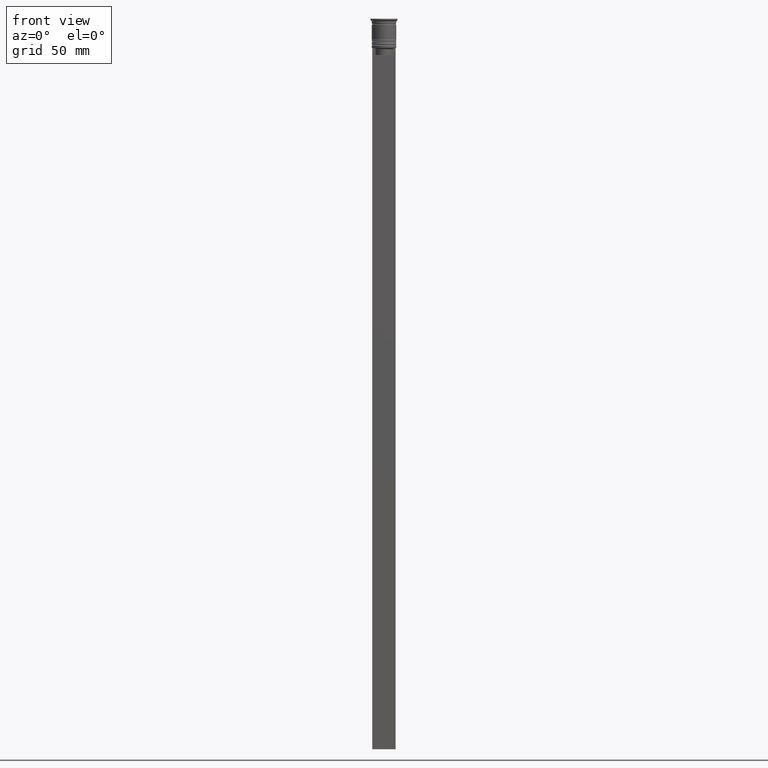
[diagram: clean part render]
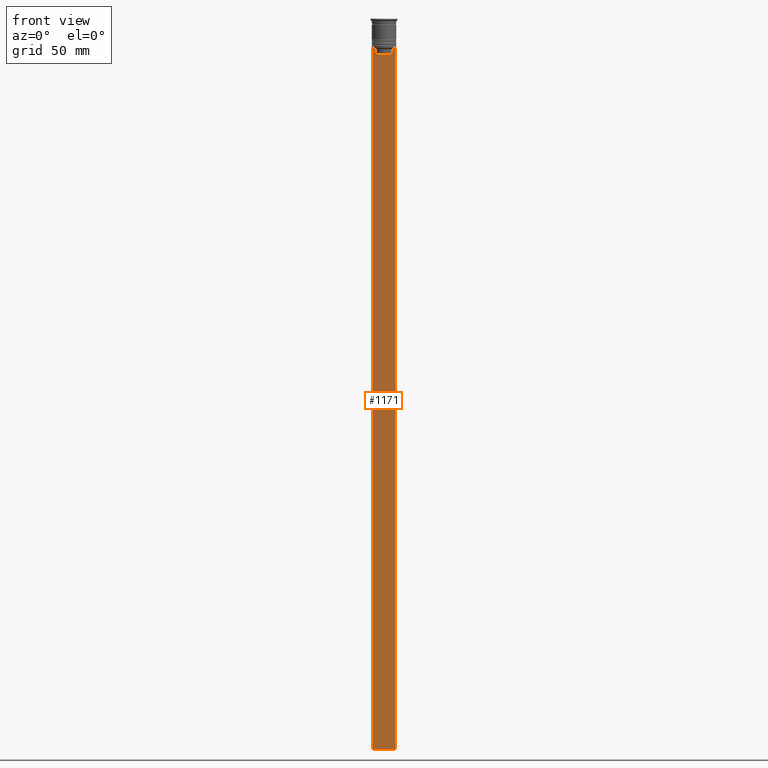
[diagram: same view with one face highlighted and labeled with its STEP entity id]
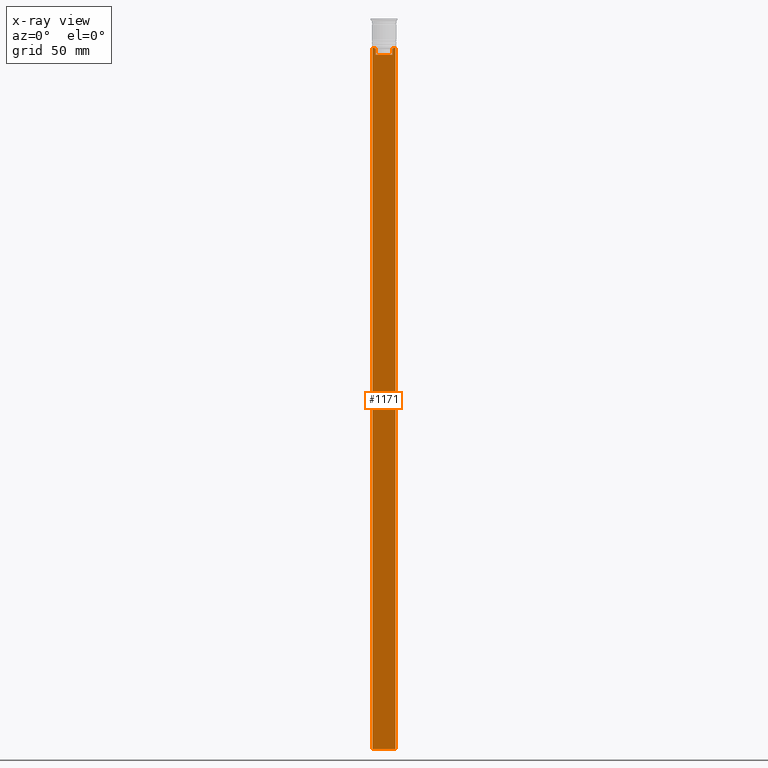
[diagram: x-ray of the same camera — body ghosted, the highlighted face saturated]
A machine part, front view. The second image highlights one B-rep face of the part: STEP entity #1171.
The next image is the same camera in x-ray: the body ghosted, the highlighted face saturated — about 0% of this face is hidden behind the body in this view.
In plain terms, the highlighted planar face has unit normal (0, -1, -0).
Its self-contained STEP definition (entity closure, byte-faithful):
#2 = DIRECTION ( 'NONE',  ( -0.000000000000000000, -0.000000000000000000, 1.000000000000000000 ) ) ;
#152 = ORIENTED_EDGE ( 'NONE', *, *, #1941, .T. ) ;
#163 = CARTESIAN_POINT ( 'NONE',  ( 5.000000000000000000, -0.5000000000000008882, -12.50000000000000000 ) ) ;
#224 = VERTEX_POINT ( 'NONE', #1565 ) ;
#252 = EDGE_CURVE ( 'NONE', #2272, #1812, #2066, .T. ) ;
#289 = ORIENTED_EDGE ( 'NONE', *, *, #1993, .F. ) ;
#302 = EDGE_CURVE ( 'NONE', #1812, #2226, #917, .T. ) ;
#318 = VECTOR ( 'NONE', #1715, 1000.000000000000000 ) ;
#334 = DIRECTION ( 'NONE',  ( 0.000000000000000000, 0.000000000000000000, -1.000000000000000000 ) ) ;
#386 = CARTESIAN_POINT ( 'NONE',  ( -4.119769411022908834, -0.5000000000000008882, -12.50000000000000000 ) ) ;
#412 = CARTESIAN_POINT ( 'NONE',  ( 5.000000000000000000, -0.5000000000000008882, -12.50000000000000000 ) ) ;
#415 = CARTESIAN_POINT ( 'NONE',  ( -3.951794205566887985, -0.5000000000000008882, -12.66675159355373914 ) ) ;
#474 = AXIS2_PLACEMENT_3D ( 'NONE', #2008, #907, #1818 ) ;
#526 = CARTESIAN_POINT ( 'NONE',  ( -3.615591237958188486, -0.5000000000000008882, -15.50000000000000000 ) ) ;
#529 = CARTESIAN_POINT ( 'NONE',  ( 3.951794168112528816, -0.5000000000000008882, -12.66675163073525745 ) ) ;
#534 = LINE ( 'NONE', #1815, #1154 ) ;
#556 = FACE_OUTER_BOUND ( 'NONE', #603, .T. ) ;
#603 = EDGE_LOOP ( 'NONE', ( #946, #2078, #152, #289, #1701, #2203, #698, #1887, #2242, #657 ) ) ;
#608 = EDGE_CURVE ( 'NONE', #701, #1915, #1756, .T. ) ;
#657 = ORIENTED_EDGE ( 'NONE', *, *, #608, .F. ) ;
#659 = DIRECTION ( 'NONE',  ( 0.000000000000000000, 0.000000000000000000, -1.000000000000000000 ) ) ;
#698 = ORIENTED_EDGE ( 'NONE', *, *, #1640, .F. ) ;
#701 = VERTEX_POINT ( 'NONE', #1402 ) ;
#703 = CARTESIAN_POINT ( 'NONE',  ( 3.615591237958188042, -0.5000000000000008882, -13.00000000000000178 ) ) ;
#737 = DIRECTION ( 'NONE',  ( 0.000000000000000000, 0.000000000000000000, -1.000000000000000000 ) ) ;
#750 = VECTOR ( 'NONE', #2326, 1000.000000000000000 ) ;
#798 = CARTESIAN_POINT ( 'NONE',  ( 5.000000000000000000, -0.5000000000000008882, -312.5000000000000000 ) ) ;
#830 = VECTOR ( 'NONE', #334, 1000.000000000000000 ) ;
#858 = CARTESIAN_POINT ( 'NONE',  ( 5.000000000000000000, -0.5000000000000008882, -312.5000000000000000 ) ) ;
#874 = CARTESIAN_POINT ( 'NONE',  ( -4.999999999999999112, -0.5000000000000008882, -2.450124378879110054 ) ) ;
#891 = LINE ( 'NONE', #858, #750 ) ;
#902 = VECTOR ( 'NONE', #1585, 1000.000000000000000 ) ;
#907 = DIRECTION ( 'NONE',  ( 0.000000000000000000, -1.000000000000000000, -0.000000000000000000 ) ) ;
#917 = LINE ( 'NONE', #1450, #2168 ) ;
#946 = ORIENTED_EDGE ( 'NONE', *, *, #1021, .F. ) ;
#966 = CARTESIAN_POINT ( 'NONE',  ( -3.615591237958188042, -0.5000000000000008882, -13.00000000000000178 ) ) ;
#1021 = EDGE_CURVE ( 'NONE', #2049, #701, #1581, .T. ) ;
#1026 = CARTESIAN_POINT ( 'NONE',  ( 4.119769411022908834, -0.5000000000000008882, -12.50000000000000000 ) ) ;
#1029 = CARTESIAN_POINT ( 'NONE',  ( -3.615591237958188042, -0.5000000000000008882, 0.000000000000000000 ) ) ;
#1032 = CARTESIAN_POINT ( 'NONE',  ( 0.000000000000000000, -0.5000000000000008882, -15.50000000000000000 ) ) ;
#1086 = PLANE ( 'NONE',  #474 ) ;
#1135 = CARTESIAN_POINT ( 'NONE',  ( -3.783746449387932476, -0.5000000000000008882, -12.83342999751715752 ) ) ;
#1154 = VECTOR ( 'NONE', #2, 1000.000000000000000 ) ;
#1171 = ADVANCED_FACE ( 'NONE', ( #556 ), #1086, .T. ) ;
#1239 = LINE ( 'NONE', #874, #830 ) ;
#1379 = VECTOR ( 'NONE', #659, 1000.000000000000000 ) ;
#1402 = CARTESIAN_POINT ( 'NONE',  ( -3.615591237958188042, -0.5000000000000008882, -13.00000000000000178 ) ) ;
#1404 = VERTEX_POINT ( 'NONE', #2229 ) ;
#1450 = CARTESIAN_POINT ( 'NONE',  ( 5.000000000000000000, -0.5000000000000008882, -2.450124378879110054 ) ) ;
#1565 = CARTESIAN_POINT ( 'NONE',  ( -4.999999999999999112, -0.5000000000000008882, -312.5000000000000000 ) ) ;
#1581 = B_SPLINE_CURVE_WITH_KNOTS ( 'NONE', 3,
 ( #2039, #415, #1135, #966 ),
 .UNSPECIFIED., .F., .F.,
 ( 4, 4 ),
 ( 0.007067514914986629433, 0.007777582239375527978 ),
 .UNSPECIFIED. ) ;
#1582 = EDGE_CURVE ( 'NONE', #1915, #2271, #2075, .T. ) ;
#1583 = B_SPLINE_CURVE_WITH_KNOTS ( 'NONE', 3,
 ( #703, #2166, #529, #1788 ),
 .UNSPECIFIED., .F., .F.,
 ( 4, 4 ),
 ( 0.01745179617248909451, 0.01816207215777257411 ),
 .UNSPECIFIED. ) ;
#1585 = DIRECTION ( 'NONE',  ( 1.000000000000000000, 0.000000000000000000, 0.000000000000000000 ) ) ;
#1640 = EDGE_CURVE ( 'NONE', #1404, #2272, #1583, .T. ) ;
#1701 = ORIENTED_EDGE ( 'NONE', *, *, #302, .F. ) ;
#1715 = DIRECTION ( 'NONE',  ( 1.000000000000000000, 0.000000000000000000, 0.000000000000000000 ) ) ;
#1756 = LINE ( 'NONE', #1029, #1379 ) ;
#1757 = DIRECTION ( 'NONE',  ( 1.000000000000000000, 0.000000000000000000, 0.000000000000000000 ) ) ;
#1766 = VECTOR ( 'NONE', #1757, 1000.000000000000000 ) ;
#1788 = CARTESIAN_POINT ( 'NONE',  ( 4.119769411022908834, -0.5000000000000008882, -12.50000000000000000 ) ) ;
#1812 = VERTEX_POINT ( 'NONE', #412 ) ;
#1815 = CARTESIAN_POINT ( 'NONE',  ( 3.615591237958188042, -0.5000000000000008882, 0.000000000000000000 ) ) ;
#1818 = DIRECTION ( 'NONE',  ( 0.000000000000000000, 0.000000000000000000, -1.000000000000000000 ) ) ;
#1843 = VERTEX_POINT ( 'NONE', #1853 ) ;
#1853 = CARTESIAN_POINT ( 'NONE',  ( -4.999999999999999112, -0.5000000000000008882, -12.50000000000000000 ) ) ;
#1887 = ORIENTED_EDGE ( 'NONE', *, *, #2055, .F. ) ;
#1891 = CARTESIAN_POINT ( 'NONE',  ( 5.000000000000000000, -0.5000000000000008882, -12.50000000000000000 ) ) ;
#1915 = VERTEX_POINT ( 'NONE', #526 ) ;
#1916 = EDGE_CURVE ( 'NONE', #1843, #2049, #2340, .T. ) ;
#1941 = EDGE_CURVE ( 'NONE', #1843, #224, #1239, .T. ) ;
#1993 = EDGE_CURVE ( 'NONE', #2226, #224, #891, .T. ) ;
#2008 = CARTESIAN_POINT ( 'NONE',  ( 5.000000000000000000, -0.5000000000000008882, -2.450124378879110054 ) ) ;
#2039 = CARTESIAN_POINT ( 'NONE',  ( -4.119769411022908834, -0.5000000000000008882, -12.50000000000000000 ) ) ;
#2049 = VERTEX_POINT ( 'NONE', #386 ) ;
#2055 = EDGE_CURVE ( 'NONE', #2271, #1404, #534, .T. ) ;
#2066 = LINE ( 'NONE', #1891, #318 ) ;
#2075 = LINE ( 'NONE', #1032, #902 ) ;
#2078 = ORIENTED_EDGE ( 'NONE', *, *, #1916, .F. ) ;
#2166 = CARTESIAN_POINT ( 'NONE',  ( 3.783746406711540278, -0.5000000000000008882, -12.83343003979123509 ) ) ;
#2168 = VECTOR ( 'NONE', #737, 1000.000000000000000 ) ;
#2203 = ORIENTED_EDGE ( 'NONE', *, *, #252, .F. ) ;
#2226 = VERTEX_POINT ( 'NONE', #798 ) ;
#2229 = CARTESIAN_POINT ( 'NONE',  ( 3.615591237958188042, -0.5000000000000008882, -13.00000000000000178 ) ) ;
#2242 = ORIENTED_EDGE ( 'NONE', *, *, #1582, .F. ) ;
#2271 = VERTEX_POINT ( 'NONE', #2278 ) ;
#2272 = VERTEX_POINT ( 'NONE', #1026 ) ;
#2278 = CARTESIAN_POINT ( 'NONE',  ( 3.615591237958188486, -0.5000000000000008882, -15.50000000000000000 ) ) ;
#2326 = DIRECTION ( 'NONE',  ( -1.000000000000000000, 0.000000000000000000, 0.000000000000000000 ) ) ;
#2340 = LINE ( 'NONE', #163, #1766 ) ;